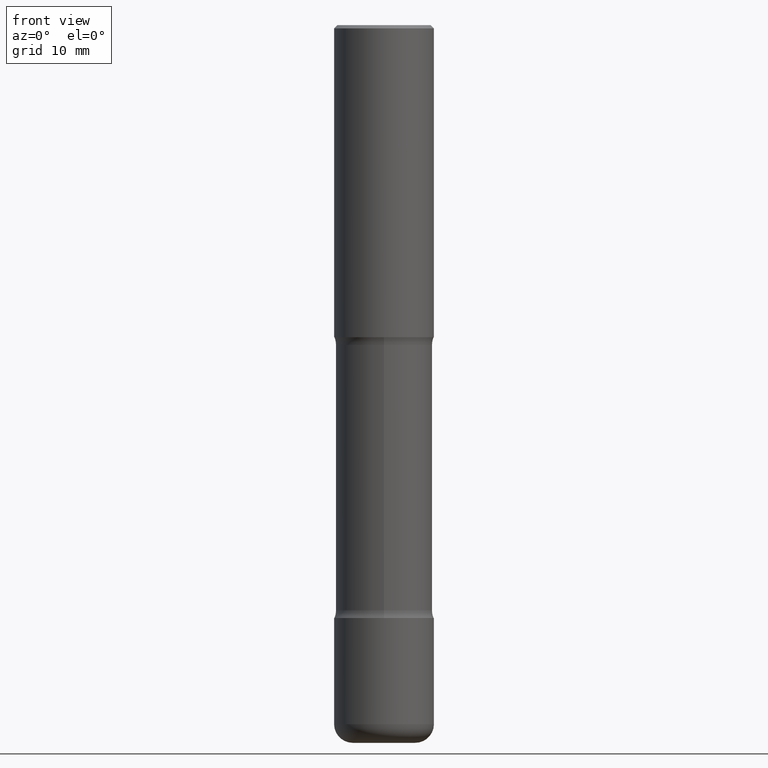
[diagram: clean part render]
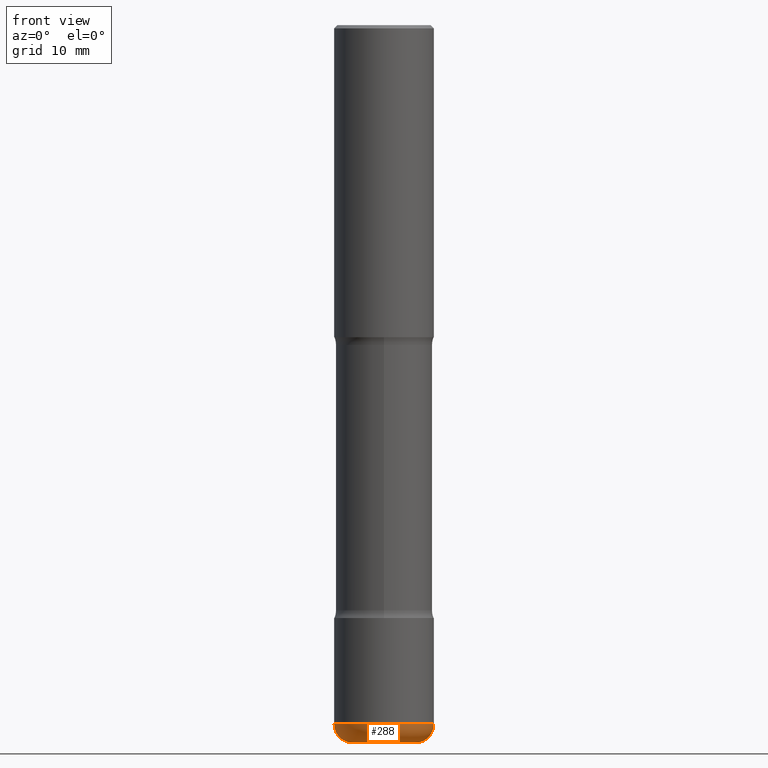
[diagram: same view with one face highlighted and labeled with its STEP entity id]
A machine part, front view. The second image highlights one B-rep face of the part: STEP entity #288.
In plain terms, the highlighted toroidal blend (fillet) surface has major radius 5 mm and minor (blend) radius 2.9997 mm.
Its self-contained STEP definition (entity closure, byte-faithful):
#24 = CARTESIAN_POINT ( 'NONE',  ( 0.1968500000000002470, -1.718262711284877024E-14, -4.527600000000000513 ) ) ;
#32 = EDGE_CURVE ( 'NONE', #134, #265, #332, .T. ) ;
#49 = AXIS2_PLACEMENT_3D ( 'NONE', #170, #472, #89 ) ;
#57 = CIRCLE ( 'NONE', #335, 0.1181000000000000383 ) ;
#66 = VERTEX_POINT ( 'NONE', #324 ) ;
#85 = CARTESIAN_POINT ( 'NONE',  ( -0.1968500000000002470, -1.378358007587744270E-14, -4.527600000000000513 ) ) ;
#89 = DIRECTION ( 'NONE',  ( 1.000000000000000000, -6.982962677686263555E-15, 0.000000000000000000 ) ) ;
#101 = VERTEX_POINT ( 'NONE', #124 ) ;
#103 = AXIS2_PLACEMENT_3D ( 'NONE', #167, #129, #174 ) ;
#106 = AXIS2_PLACEMENT_3D ( 'NONE', #557, #316, #463 ) ;
#113 = ORIENTED_EDGE ( 'NONE', *, *, #446, .T. ) ;
#124 = CARTESIAN_POINT ( 'NONE',  ( -0.3149500000000002853, -1.315783261735241693E-14, -4.409500000000000419 ) ) ;
#129 = DIRECTION ( 'NONE',  ( -2.445468806185136597E-29, 3.491481338843145583E-15, 1.000000000000000000 ) ) ;
#132 = TOROIDAL_SURFACE ( 'NONE', #419, 0.1968500000000002470, 0.1181000000000000383 ) ;
#134 = VERTEX_POINT ( 'NONE', #85 ) ;
#157 = EDGE_CURVE ( 'NONE', #101, #66, #342, .T. ) ;
#167 = CARTESIAN_POINT ( 'NONE',  ( 1.107210456688382522E-28, -1.580803090974622705E-14, -4.527600000000000513 ) ) ;
#170 = CARTESIAN_POINT ( 'NONE',  ( 1.078329470087336022E-28, -1.539568696362885450E-14, -4.409500000000000419 ) ) ;
#174 = DIRECTION ( 'NONE',  ( 1.000000000000000000, -6.982962677686269866E-15, 0.000000000000000000 ) ) ;
#187 = ORIENTED_EDGE ( 'NONE', *, *, #32, .T. ) ;
#191 = ORIENTED_EDGE ( 'NONE', *, *, #157, .F. ) ;
#225 = ORIENTED_EDGE ( 'NONE', *, *, #504, .F. ) ;
#265 = VERTEX_POINT ( 'NONE', #24 ) ;
#276 = CARTESIAN_POINT ( 'NONE',  ( 1.078329470087336022E-28, -1.539568696362885450E-14, -4.409500000000000419 ) ) ;
#288 = ADVANCED_FACE ( 'NONE', ( #503 ), #132, .T. ) ;
#316 = DIRECTION ( 'NONE',  ( 7.105427357601001859E-15, 1.000000000000000000, -3.491481338843145583E-15 ) ) ;
#324 = CARTESIAN_POINT ( 'NONE',  ( 0.3149500000000002853, -1.759497105896614279E-14, -4.409500000000000419 ) ) ;
#332 = CIRCLE ( 'NONE', #103, 0.1968500000000002470 ) ;
#335 = AXIS2_PLACEMENT_3D ( 'NONE', #522, #478, #490 ) ;
#342 = CIRCLE ( 'NONE', #49, 0.3149500000000002853 ) ;
#365 = CIRCLE ( 'NONE', #106, 0.1181000000000000383 ) ;
#381 = EDGE_LOOP ( 'NONE', ( #225, #187, #113, #191 ) ) ;
#419 = AXIS2_PLACEMENT_3D ( 'NONE', #276, #456, #498 ) ;
#446 = EDGE_CURVE ( 'NONE', #265, #66, #57, .T. ) ;
#456 = DIRECTION ( 'NONE',  ( -2.445468806185136597E-29, 3.491481338843145583E-15, 1.000000000000000000 ) ) ;
#463 = DIRECTION ( 'NONE',  ( -1.000000000000000000, 7.105427357601001859E-15, 0.000000000000000000 ) ) ;
#472 = DIRECTION ( 'NONE',  ( -2.445468806185136597E-29, 3.491481338843145583E-15, 1.000000000000000000 ) ) ;
#478 = DIRECTION ( 'NONE',  ( -6.982962677686266711E-15, -1.000000000000000000, 3.491481338843145583E-15 ) ) ;
#490 = DIRECTION ( 'NONE',  ( 1.000000000000000000, -6.982962677686254089E-15, 0.000000000000000000 ) ) ;
#498 = DIRECTION ( 'NONE',  ( 1.000000000000000000, -6.982962677686263555E-15, 4.883557194083111780E-29 ) ) ;
#503 = FACE_OUTER_BOUND ( 'NONE', #381, .T. ) ;
#504 = EDGE_CURVE ( 'NONE', #134, #101, #365, .T. ) ;
#522 = CARTESIAN_POINT ( 'NONE',  ( 0.1968500000000002470, -1.677028316673139768E-14, -4.409500000000000419 ) ) ;
#557 = CARTESIAN_POINT ( 'NONE',  ( -0.1968500000000002470, -1.399698358828509592E-14, -4.409500000000000419 ) ) ;